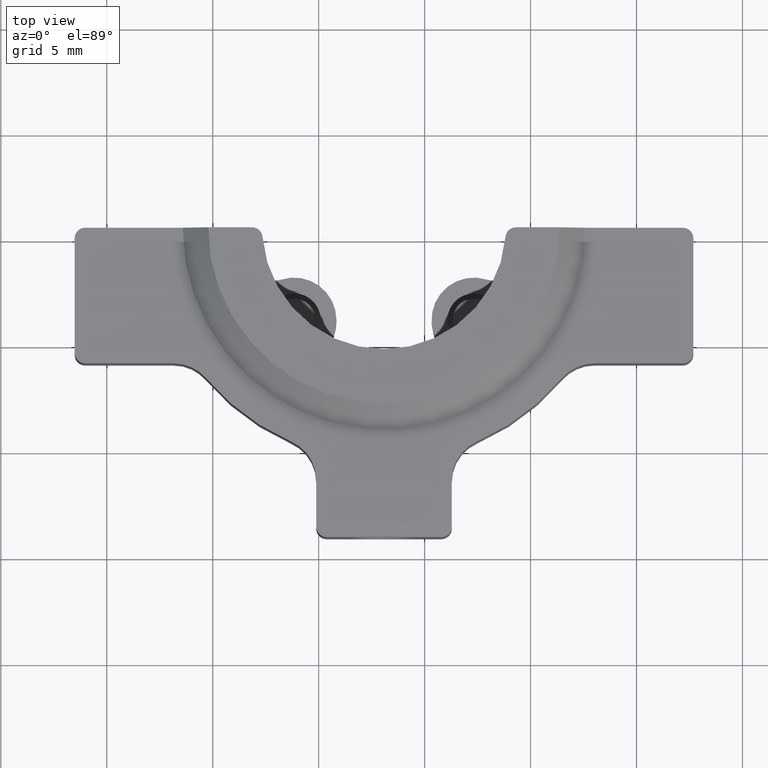
[diagram: clean part render]
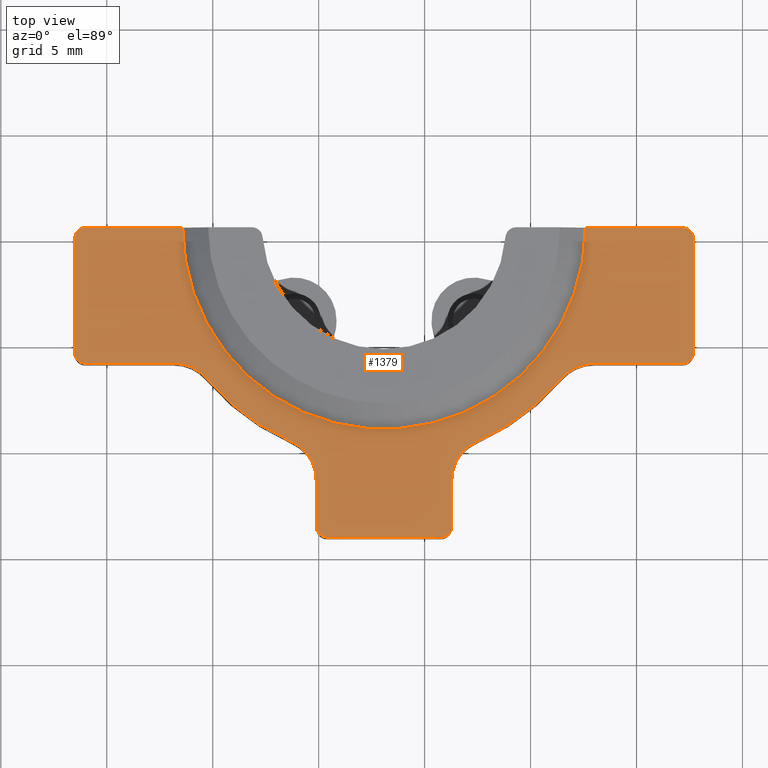
[diagram: same view with one face highlighted and labeled with its STEP entity id]
A machine part, top view. The second image highlights one B-rep face of the part: STEP entity #1379.
In plain terms, the highlighted planar face has unit normal (0, 0, 1).
Its self-contained STEP definition (entity closure, byte-faithful):
#28 = VERTEX_POINT ( 'NONE', #833 ) ;
#60 = DIRECTION ( 'NONE',  ( 0.000000000000000000, 0.000000000000000000, 1.000000000000000000 ) ) ;
#99 = EDGE_CURVE ( 'NONE', #2680, #1713, #2434, .T. ) ;
#103 = VERTEX_POINT ( 'NONE', #2156 ) ;
#113 = EDGE_CURVE ( 'NONE', #353, #3179, #2180, .T. ) ;
#142 = VERTEX_POINT ( 'NONE', #145 ) ;
#145 = CARTESIAN_POINT ( 'NONE',  ( 7.583520289026442818, 5.488821372047168801, 33.35000000000000142 ) ) ;
#220 = CARTESIAN_POINT ( 'NONE',  ( 12.18352028902644335, -0.4111786279528278909, 33.35000000000000142 ) ) ;
#237 = CARTESIAN_POINT ( 'NONE',  ( 12.68352028902644513, -1.111178627952830844, 33.35000000000000142 ) ) ;
#242 = CARTESIAN_POINT ( 'NONE',  ( 12.68352028902644335, 5.488821372047168801, 33.35000000000000142 ) ) ;
#248 = CARTESIAN_POINT ( 'NONE',  ( -8.516479710973555939, -1.111178627952830844, 33.35000000000000142 ) ) ;
#257 = CARTESIAN_POINT ( 'NONE',  ( -1.916479710973556516, 5.488821372047168801, 33.35000000000000142 ) ) ;
#306 = CARTESIAN_POINT ( 'NONE',  ( -16.51647971097355949, 5.488821372047168801, 33.35000000000000142 ) ) ;
#309 = AXIS2_PLACEMENT_3D ( 'NONE', #1407, #1646, #2938 ) ;
#324 = EDGE_CURVE ( 'NONE', #983, #353, #742, .T. ) ;
#332 = CARTESIAN_POINT ( 'NONE',  ( -1.916479710973556516, 5.488821372047168801, 33.35000000000000142 ) ) ;
#346 = ORIENTED_EDGE ( 'NONE', *, *, #1618, .F. ) ;
#353 = VERTEX_POINT ( 'NONE', #2076 ) ;
#362 = CARTESIAN_POINT ( 'NONE',  ( -1.916479710973556516, 5.488821372047168801, 33.35000000000000142 ) ) ;
#377 = ORIENTED_EDGE ( 'NONE', *, *, #99, .T. ) ;
#417 = CIRCLE ( 'NONE', #2218, 2.000000000000000000 ) ;
#426 = CARTESIAN_POINT ( 'NONE',  ( -16.01647971097355949, 5.488821372047168801, 33.35000000000000142 ) ) ;
#461 = CARTESIAN_POINT ( 'NONE',  ( -10.31175874500045353, -1.618870935645139619, 33.35000000000000142 ) ) ;
#467 = EDGE_CURVE ( 'NONE', #142, #1495, #3264, .T. ) ;
#516 = CARTESIAN_POINT ( 'NONE',  ( -5.116479710973556472, -8.611178627952831732, 33.35000000000000142 ) ) ;
#575 = EDGE_LOOP ( 'NONE', ( #1295, #1888, #634, #3037, #2212, #3143, #2950, #377, #1200, #1009, #1221, #1510, #606, #1016, #346, #1983, #2563, #1390, #837, #1586, #2096, #1184 ) ) ;
#590 = LINE ( 'NONE', #1163, #2486 ) ;
#591 = DIRECTION ( 'NONE',  ( 1.000000000000000000, -8.673617379884035472E-16, 0.000000000000000000 ) ) ;
#592 = EDGE_CURVE ( 'NONE', #1990, #2114, #1629, .T. ) ;
#606 = ORIENTED_EDGE ( 'NONE', *, *, #1733, .F. ) ;
#608 = EDGE_CURVE ( 'NONE', #2444, #700, #2271, .T. ) ;
#634 = ORIENTED_EDGE ( 'NONE', *, *, #2306, .T. ) ;
#643 = DIRECTION ( 'NONE',  ( -0.000000000000000000, -0.000000000000000000, -1.000000000000000000 ) ) ;
#647 = CARTESIAN_POINT ( 'NONE',  ( -8.516479710973557715, -9.111178627952831732, 33.35000000000000142 ) ) ;
#700 = VERTEX_POINT ( 'NONE', #2335 ) ;
#724 = DIRECTION ( 'NONE',  ( -0.000000000000000000, -0.000000000000000000, -1.000000000000000000 ) ) ;
#732 = CARTESIAN_POINT ( 'NONE',  ( -11.41647971097355629, 5.488821372047168801, 33.35000000000000142 ) ) ;
#742 = CIRCLE ( 'NONE', #2858, 0.5000000000000004441 ) ;
#782 = VECTOR ( 'NONE', #1316, 1000.000000000000000 ) ;
#797 = EDGE_CURVE ( 'NONE', #1713, #1563, #2267, .T. ) ;
#799 = CARTESIAN_POINT ( 'NONE',  ( -5.116479710973556472, -5.035436321491125966, 33.35000000000000142 ) ) ;
#806 = CARTESIAN_POINT ( 'NONE',  ( 8.005213692876413489, -0.9111786279528287791, 33.35000000000000142 ) ) ;
#813 = EDGE_CURVE ( 'NONE', #1253, #2114, #2484, .T. ) ;
#833 = CARTESIAN_POINT ( 'NONE',  ( 12.18352028902644335, -0.9111786279528277799, 33.35000000000000142 ) ) ;
#837 = ORIENTED_EDGE ( 'NONE', *, *, #1014, .F. ) ;
#871 = EDGE_CURVE ( 'NONE', #3194, #2842, #590, .T. ) ;
#887 = AXIS2_PLACEMENT_3D ( 'NONE', #2719, #724, #2220 ) ;
#947 = CIRCLE ( 'NONE', #2801, 0.5000000000000004441 ) ;
#983 = VERTEX_POINT ( 'NONE', #516 ) ;
#986 = DIRECTION ( 'NONE',  ( -1.000000000000000000, 0.000000000000000000, 0.000000000000000000 ) ) ;
#1009 = ORIENTED_EDGE ( 'NONE', *, *, #1413, .T. ) ;
#1014 = EDGE_CURVE ( 'NONE', #1990, #103, #1483, .T. ) ;
#1016 = ORIENTED_EDGE ( 'NONE', *, *, #608, .T. ) ;
#1037 = AXIS2_PLACEMENT_3D ( 'NONE', #257, #1271, #1785 ) ;
#1039 = EDGE_CURVE ( 'NONE', #1155, #2055, #1581, .T. ) ;
#1087 = CARTESIAN_POINT ( 'NONE',  ( 12.68352028902644335, 4.988821372047167912, 33.35000000000000142 ) ) ;
#1107 = CIRCLE ( 'NONE', #3284, 0.5000000000000000000 ) ;
#1155 = VERTEX_POINT ( 'NONE', #1087 ) ;
#1163 = CARTESIAN_POINT ( 'NONE',  ( -16.51647971097355949, -0.9111786279528311105, 33.35000000000000142 ) ) ;
#1184 = ORIENTED_EDGE ( 'NONE', *, *, #1502, .T. ) ;
#1196 = DIRECTION ( 'NONE',  ( 0.000000000000000000, 0.000000000000000000, 1.000000000000000000 ) ) ;
#1200 = ORIENTED_EDGE ( 'NONE', *, *, #797, .T. ) ;
#1207 = AXIS2_PLACEMENT_3D ( 'NONE', #3038, #1196, #3286 ) ;
#1221 = ORIENTED_EDGE ( 'NONE', *, *, #871, .F. ) ;
#1253 = VERTEX_POINT ( 'NONE', #1936 ) ;
#1258 = AXIS2_PLACEMENT_3D ( 'NONE', #3195, #1992, #3255 ) ;
#1264 = AXIS2_PLACEMENT_3D ( 'NONE', #248, #2974, #2261 ) ;
#1271 = DIRECTION ( 'NONE',  ( -0.000000000000000000, -0.000000000000000000, -1.000000000000000000 ) ) ;
#1273 = CARTESIAN_POINT ( 'NONE',  ( 12.18352028902644335, 5.488821372047168801, 33.35000000000000142 ) ) ;
#1295 = ORIENTED_EDGE ( 'NONE', *, *, #1500, .F. ) ;
#1316 = DIRECTION ( 'NONE',  ( 0.000000000000000000, -1.000000000000000000, 0.000000000000000000 ) ) ;
#1361 = CARTESIAN_POINT ( 'NONE',  ( -6.316479710973556649, -4.592845156855679178, 33.35000000000000142 ) ) ;
#1369 = AXIS2_PLACEMENT_3D ( 'NONE', #362, #643, #2389 ) ;
#1379 = ADVANCED_FACE ( 'NONE', ( #2923 ), #2181, .T. ) ;
#1390 = ORIENTED_EDGE ( 'NONE', *, *, #2447, .T. ) ;
#1407 = CARTESIAN_POINT ( 'NONE',  ( -16.01647971097355949, 4.988821372047167912, 33.35000000000000142 ) ) ;
#1413 = EDGE_CURVE ( 'NONE', #1563, #2842, #947, .T. ) ;
#1425 = CARTESIAN_POINT ( 'NONE',  ( -16.01647971097355949, -0.9111786279528311105, 33.35000000000000142 ) ) ;
#1450 = DIRECTION ( 'NONE',  ( 0.000000000000000000, 0.000000000000000000, 1.000000000000000000 ) ) ;
#1464 = CARTESIAN_POINT ( 'NONE',  ( -16.01647971097355949, -0.4111786279528315546, 33.35000000000000142 ) ) ;
#1483 = LINE ( 'NONE', #2281, #1745 ) ;
#1495 = VERTEX_POINT ( 'NONE', #732 ) ;
#1498 = DIRECTION ( 'NONE',  ( 1.000000000000000000, 0.000000000000000000, 0.000000000000000000 ) ) ;
#1500 = EDGE_CURVE ( 'NONE', #28, #2322, #2229, .T. ) ;
#1502 = EDGE_CURVE ( 'NONE', #1253, #2322, #2961, .T. ) ;
#1504 = DIRECTION ( 'NONE',  ( -2.628368902995162518E-16, 1.000000000000000000, 0.000000000000000000 ) ) ;
#1510 = ORIENTED_EDGE ( 'NONE', *, *, #2080, .T. ) ;
#1519 = CARTESIAN_POINT ( 'NONE',  ( 0.7835202890264445497, -9.111178627952831732, 33.35000000000000142 ) ) ;
#1520 = CARTESIAN_POINT ( 'NONE',  ( 1.283520289026443661, -6.425875434838014044, 33.35000000000000142 ) ) ;
#1563 = VERTEX_POINT ( 'NONE', #1841 ) ;
#1581 = CIRCLE ( 'NONE', #1207, 0.5000000000000004441 ) ;
#1586 = ORIENTED_EDGE ( 'NONE', *, *, #592, .T. ) ;
#1618 = EDGE_CURVE ( 'NONE', #983, #700, #2569, .T. ) ;
#1629 = CIRCLE ( 'NONE', #887, 2.000000000000000000 ) ;
#1637 = CIRCLE ( 'NONE', #1369, 11.00000000000000000 ) ;
#1646 = DIRECTION ( 'NONE',  ( 0.000000000000000000, 0.000000000000000000, 1.000000000000000000 ) ) ;
#1660 = DIRECTION ( 'NONE',  ( 1.000000000000000000, 0.000000000000000000, 0.000000000000000000 ) ) ;
#1686 = VECTOR ( 'NONE', #2123, 1000.000000000000000 ) ;
#1713 = VERTEX_POINT ( 'NONE', #2127 ) ;
#1728 = DIRECTION ( 'NONE',  ( 1.000000000000000000, 2.602085213965210642E-15, 0.000000000000000000 ) ) ;
#1733 = EDGE_CURVE ( 'NONE', #2444, #3244, #1637, .T. ) ;
#1741 = VECTOR ( 'NONE', #986, 1000.000000000000000 ) ;
#1745 = VECTOR ( 'NONE', #2547, 1000.000000000000000 ) ;
#1747 = DIRECTION ( 'NONE',  ( -0.000000000000000000, -0.000000000000000000, -1.000000000000000000 ) ) ;
#1767 = CARTESIAN_POINT ( 'NONE',  ( 12.68352028902644335, -0.9111786279528276689, 33.35000000000000142 ) ) ;
#1785 = DIRECTION ( 'NONE',  ( 1.000000000000000000, 0.000000000000000000, 0.000000000000000000 ) ) ;
#1814 = EDGE_CURVE ( 'NONE', #2055, #142, #2490, .T. ) ;
#1841 = CARTESIAN_POINT ( 'NONE',  ( -16.51647971097355949, -0.4111786279528315546, 33.35000000000000142 ) ) ;
#1854 = VECTOR ( 'NONE', #2725, 1000.000000000000000 ) ;
#1888 = ORIENTED_EDGE ( 'NONE', *, *, #2621, .T. ) ;
#1907 = CARTESIAN_POINT ( 'NONE',  ( -11.83817311482352430, -2.911178627952831999, 33.35000000000000142 ) ) ;
#1909 = VECTOR ( 'NONE', #1660, 1000.000000000000000 ) ;
#1936 = CARTESIAN_POINT ( 'NONE',  ( 6.478799323053340942, -1.618870935645137843, 33.35000000000000142 ) ) ;
#1939 = DIRECTION ( 'NONE',  ( -1.000000000000000000, -0.000000000000000000, -0.000000000000000000 ) ) ;
#1983 = ORIENTED_EDGE ( 'NONE', *, *, #324, .T. ) ;
#1990 = VERTEX_POINT ( 'NONE', #1520 ) ;
#1992 = DIRECTION ( 'NONE',  ( -0.000000000000000000, -0.000000000000000000, -1.000000000000000000 ) ) ;
#2055 = VERTEX_POINT ( 'NONE', #1273 ) ;
#2076 = CARTESIAN_POINT ( 'NONE',  ( -4.616479710973555584, -9.111178627952831732, 33.35000000000000142 ) ) ;
#2080 = EDGE_CURVE ( 'NONE', #3194, #3244, #417, .T. ) ;
#2096 = ORIENTED_EDGE ( 'NONE', *, *, #813, .F. ) ;
#2114 = VERTEX_POINT ( 'NONE', #2866 ) ;
#2123 = DIRECTION ( 'NONE',  ( -1.000000000000000000, 0.000000000000000000, 0.000000000000000000 ) ) ;
#2127 = CARTESIAN_POINT ( 'NONE',  ( -16.51647971097355949, 4.988821372047167912, 33.35000000000000142 ) ) ;
#2129 = CIRCLE ( 'NONE', #2699, 0.5000000000000004441 ) ;
#2146 = EDGE_CURVE ( 'NONE', #1495, #2680, #2352, .T. ) ;
#2156 = CARTESIAN_POINT ( 'NONE',  ( 1.283520289026442773, -8.611178627952831732, 33.35000000000000142 ) ) ;
#2180 = LINE ( 'NONE', #647, #1909 ) ;
#2181 = PLANE ( 'NONE',  #1264 ) ;
#2182 = VECTOR ( 'NONE', #1504, 1000.000000000000000 ) ;
#2212 = ORIENTED_EDGE ( 'NONE', *, *, #1814, .T. ) ;
#2218 = AXIS2_PLACEMENT_3D ( 'NONE', #1907, #3157, #591 ) ;
#2220 = DIRECTION ( 'NONE',  ( 1.000000000000000000, 0.000000000000000000, 0.000000000000000000 ) ) ;
#2229 = LINE ( 'NONE', #1767, #1854 ) ;
#2238 = VERTEX_POINT ( 'NONE', #2730 ) ;
#2261 = DIRECTION ( 'NONE',  ( 1.000000000000000000, 0.000000000000000000, -0.000000000000000000 ) ) ;
#2266 = AXIS2_PLACEMENT_3D ( 'NONE', #332, #3182, #2402 ) ;
#2267 = LINE ( 'NONE', #306, #782 ) ;
#2271 = CIRCLE ( 'NONE', #1258, 2.000000000000000000 ) ;
#2281 = CARTESIAN_POINT ( 'NONE',  ( 1.283520289026444106, -5.035436321491125078, 33.35000000000000142 ) ) ;
#2298 = LINE ( 'NONE', #237, #2182 ) ;
#2306 = EDGE_CURVE ( 'NONE', #2238, #1155, #2298, .T. ) ;
#2322 = VERTEX_POINT ( 'NONE', #806 ) ;
#2335 = CARTESIAN_POINT ( 'NONE',  ( -5.116479710973556472, -6.425875434838014044, 33.35000000000000142 ) ) ;
#2348 = DIRECTION ( 'NONE',  ( 0.000000000000000000, 0.000000000000000000, 1.000000000000000000 ) ) ;
#2352 = LINE ( 'NONE', #2364, #1686 ) ;
#2364 = CARTESIAN_POINT ( 'NONE',  ( -11.41647971097355629, 5.488821372047168801, 33.35000000000000142 ) ) ;
#2389 = DIRECTION ( 'NONE',  ( 1.000000000000000000, 0.000000000000000000, 0.000000000000000000 ) ) ;
#2402 = DIRECTION ( 'NONE',  ( 1.000000000000000000, 0.000000000000000000, 0.000000000000000000 ) ) ;
#2434 = CIRCLE ( 'NONE', #309, 0.5000000000000004441 ) ;
#2444 = VERTEX_POINT ( 'NONE', #1361 ) ;
#2447 = EDGE_CURVE ( 'NONE', #3179, #103, #1107, .T. ) ;
#2484 = CIRCLE ( 'NONE', #1037, 11.00000000000000000 ) ;
#2486 = VECTOR ( 'NONE', #1939, 1000.000000000000000 ) ;
#2490 = LINE ( 'NONE', #242, #1741 ) ;
#2494 = VECTOR ( 'NONE', #2822, 1000.000000000000000 ) ;
#2547 = DIRECTION ( 'NONE',  ( -3.192161106260140299E-16, -1.000000000000000000, 0.000000000000000000 ) ) ;
#2558 = CARTESIAN_POINT ( 'NONE',  ( -4.616479710973555584, -8.611178627952831732, 33.35000000000000142 ) ) ;
#2563 = ORIENTED_EDGE ( 'NONE', *, *, #113, .T. ) ;
#2569 = LINE ( 'NONE', #799, #2494 ) ;
#2609 = CARTESIAN_POINT ( 'NONE',  ( 0.7835202890264445497, -8.611178627952831732, 33.35000000000000142 ) ) ;
#2621 = EDGE_CURVE ( 'NONE', #28, #2238, #2129, .T. ) ;
#2680 = VERTEX_POINT ( 'NONE', #426 ) ;
#2692 = DIRECTION ( 'NONE',  ( 1.000000000000000000, 0.000000000000000000, 0.000000000000000000 ) ) ;
#2699 = AXIS2_PLACEMENT_3D ( 'NONE', #220, #2714, #2692 ) ;
#2714 = DIRECTION ( 'NONE',  ( 0.000000000000000000, 0.000000000000000000, 1.000000000000000000 ) ) ;
#2719 = CARTESIAN_POINT ( 'NONE',  ( 3.283520289026444328, -6.425875434838015821, 33.35000000000000142 ) ) ;
#2725 = DIRECTION ( 'NONE',  ( -1.000000000000000000, -2.301307824627544859E-16, 0.000000000000000000 ) ) ;
#2730 = CARTESIAN_POINT ( 'NONE',  ( 12.68352028902644513, -0.4111786279528278909, 33.35000000000000142 ) ) ;
#2752 = CARTESIAN_POINT ( 'NONE',  ( -11.83817311482352430, -0.9111786279528311105, 33.35000000000000142 ) ) ;
#2775 = CARTESIAN_POINT ( 'NONE',  ( 8.005213692876413489, -2.911178627952829778, 33.35000000000000142 ) ) ;
#2801 = AXIS2_PLACEMENT_3D ( 'NONE', #1464, #1450, #1498 ) ;
#2822 = DIRECTION ( 'NONE',  ( -1.064053702086713433E-16, 1.000000000000000000, -0.000000000000000000 ) ) ;
#2842 = VERTEX_POINT ( 'NONE', #1425 ) ;
#2848 = DIRECTION ( 'NONE',  ( 1.000000000000000000, 0.000000000000000000, 0.000000000000000000 ) ) ;
#2858 = AXIS2_PLACEMENT_3D ( 'NONE', #2558, #60, #2848 ) ;
#2866 = CARTESIAN_POINT ( 'NONE',  ( 2.483520289026443617, -4.592845156855677402, 33.35000000000000142 ) ) ;
#2923 = FACE_OUTER_BOUND ( 'NONE', #575, .T. ) ;
#2938 = DIRECTION ( 'NONE',  ( 1.000000000000000000, 0.000000000000000000, 0.000000000000000000 ) ) ;
#2950 = ORIENTED_EDGE ( 'NONE', *, *, #2146, .T. ) ;
#2961 = CIRCLE ( 'NONE', #3064, 2.000000000000000000 ) ;
#2974 = DIRECTION ( 'NONE',  ( 0.000000000000000000, 0.000000000000000000, 1.000000000000000000 ) ) ;
#3037 = ORIENTED_EDGE ( 'NONE', *, *, #1039, .T. ) ;
#3038 = CARTESIAN_POINT ( 'NONE',  ( 12.18352028902644335, 4.988821372047167912, 33.35000000000000142 ) ) ;
#3064 = AXIS2_PLACEMENT_3D ( 'NONE', #2775, #1747, #1728 ) ;
#3142 = DIRECTION ( 'NONE',  ( 1.000000000000000000, 0.000000000000000000, 0.000000000000000000 ) ) ;
#3143 = ORIENTED_EDGE ( 'NONE', *, *, #467, .T. ) ;
#3157 = DIRECTION ( 'NONE',  ( -0.000000000000000000, -0.000000000000000000, -1.000000000000000000 ) ) ;
#3179 = VERTEX_POINT ( 'NONE', #1519 ) ;
#3182 = DIRECTION ( 'NONE',  ( -0.000000000000000000, -0.000000000000000000, -1.000000000000000000 ) ) ;
#3194 = VERTEX_POINT ( 'NONE', #2752 ) ;
#3195 = CARTESIAN_POINT ( 'NONE',  ( -7.116479710973556472, -6.425875434838014044, 33.35000000000000142 ) ) ;
#3244 = VERTEX_POINT ( 'NONE', #461 ) ;
#3255 = DIRECTION ( 'NONE',  ( 1.000000000000000000, -8.673617379884035472E-16, 0.000000000000000000 ) ) ;
#3264 = CIRCLE ( 'NONE', #2266, 9.500000000000000000 ) ;
#3284 = AXIS2_PLACEMENT_3D ( 'NONE', #2609, #2348, #3142 ) ;
#3286 = DIRECTION ( 'NONE',  ( 1.000000000000000000, 0.000000000000000000, 0.000000000000000000 ) ) ;